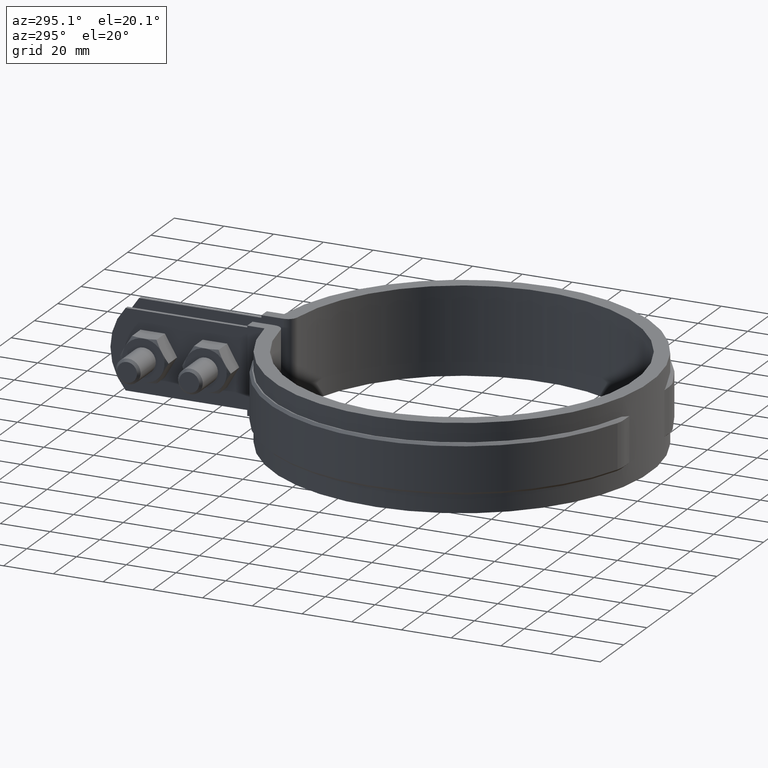
[diagram: clean part render]
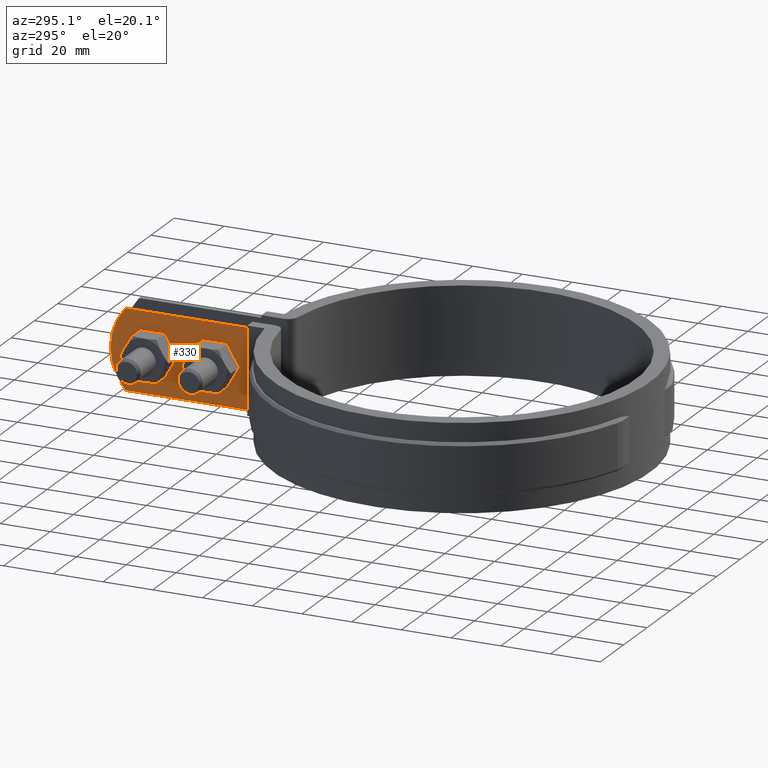
[diagram: same view with one face highlighted and labeled with its STEP entity id]
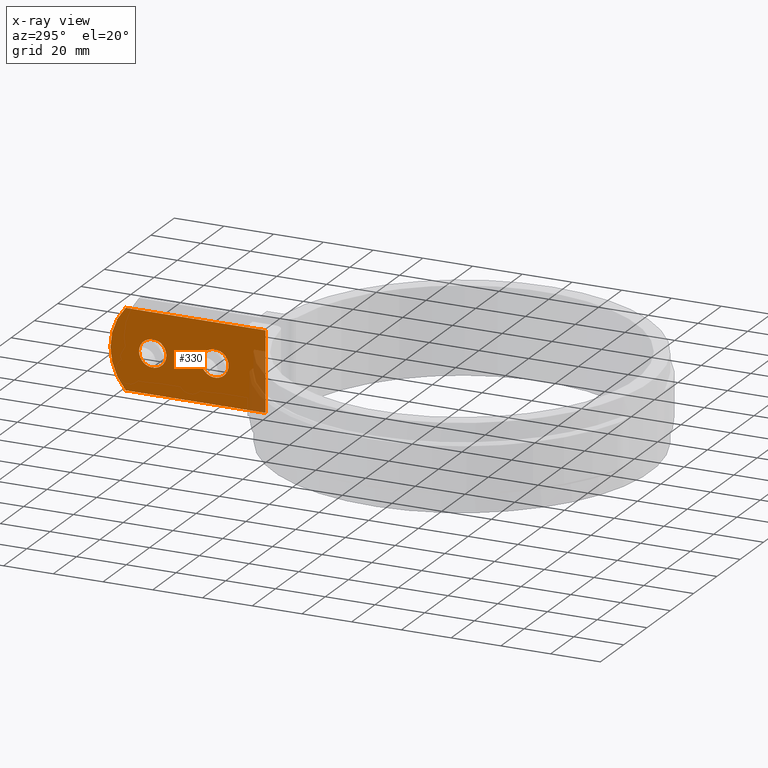
[diagram: x-ray of the same camera — body ghosted, the highlighted face saturated]
A machine part, auxiliary view. The second image highlights one B-rep face of the part: STEP entity #330.
The next image is the same camera in x-ray: the body ghosted, the highlighted face saturated — about 8% of this face is hidden behind the body in this view.
In plain terms, the highlighted planar face has unit normal (1, -0, 0).
Its self-contained STEP definition (entity closure, byte-faithful):
#330 = ADVANCED_FACE( '', ( #502, #503, #504 ), #505, .F. );
#502 = FACE_BOUND( '', #1215, .T. );
#503 = FACE_BOUND( '', #1216, .T. );
#504 = FACE_OUTER_BOUND( '', #1217, .T. );
#505 = PLANE( '', #1218 );
#1215 = EDGE_LOOP( '', ( #2390 ) );
#1216 = EDGE_LOOP( '', ( #2391 ) );
#1217 = EDGE_LOOP( '', ( #2392, #2393, #2394, #2395 ) );
#1218 = AXIS2_PLACEMENT_3D( '', #2396, #2397, #2398 );
#2390 = ORIENTED_EDGE( '', *, *, #4660, .F. );
#2391 = ORIENTED_EDGE( '', *, *, #4617, .F. );
#2392 = ORIENTED_EDGE( '', *, *, #4661, .T. );
#2393 = ORIENTED_EDGE( '', *, *, #4662, .T. );
#2394 = ORIENTED_EDGE( '', *, *, #4663, .F. );
#2395 = ORIENTED_EDGE( '', *, *, #4664, .F. );
#2396 = CARTESIAN_POINT( '', ( -6.49999999999999, 138.297141712793, 4.33680868994202E-016 ) );
#2397 = DIRECTION( '', ( 1.00000000000000, -6.02334540269725E-017, 0.000000000000000 ) );
#2398 = DIRECTION( '', ( -6.02334540269725E-017, -1.00000000000000, 0.000000000000000 ) );
#4617 = EDGE_CURVE( '', #5012, #5012, #5013, .F. );
#4660 = EDGE_CURVE( '', #5084, #5084, #5085, .F. );
#4661 = EDGE_CURVE( '', #5086, #5087, #5088, .T. );
#4662 = EDGE_CURVE( '', #5087, #5089, #5090, .T. );
#4663 = EDGE_CURVE( '', #5091, #5089, #5092, .T. );
#4664 = EDGE_CURVE( '', #5086, #5091, #5093, .T. );
#5012 = VERTEX_POINT( '', #5794 );
#5013 = CIRCLE( '', #5795, 5.50000000000000 );
#5084 = VERTEX_POINT( '', #6629 );
#5085 = CIRCLE( '', #6630, 5.50000000000000 );
#5086 = VERTEX_POINT( '', #6631 );
#5087 = VERTEX_POINT( '', #6632 );
#5088 = LINE( '', #6633, #6634 );
#5089 = VERTEX_POINT( '', #6635 );
#5090 = LINE( '', #6636, #6637 );
#5091 = VERTEX_POINT( '', #6638 );
#5092 = LINE( '', #6639, #6640 );
#5093 = CIRCLE( '', #6641, 24.0000000000000 );
#5794 = CARTESIAN_POINT( '', ( -6.49999999999999, 101.797141712793, -16.0000000000000 ) );
#5795 = AXIS2_PLACEMENT_3D( '', #8407, #8408, #8409 );
#6629 = CARTESIAN_POINT( '', ( -6.49999999999999, 126.797141712793, -16.0000000000000 ) );
#6630 = AXIS2_PLACEMENT_3D( '', #8448, #8449, #8450 );
#6631 = CARTESIAN_POINT( '', ( -6.49999999999998, 132.185685532792, -32.0000000000000 ) );
#6632 = CARTESIAN_POINT( '', ( -6.50000000000000, 75.8680433384175, -32.0000000000000 ) );
#6633 = CARTESIAN_POINT( '', ( -6.49999999999999, 138.297141712793, -32.0000000000000 ) );
#6634 = VECTOR( '', #8451, 1000.00000000000 );
#6635 = CARTESIAN_POINT( '', ( -6.50000000000000, 75.8680433384175, 4.33680868994202E-016 ) );
#6636 = CARTESIAN_POINT( '', ( -6.50000000000000, 75.8680433384175, 4.33680868994202E-016 ) );
#6637 = VECTOR( '', #8452, 1000.00000000000 );
#6638 = CARTESIAN_POINT( '', ( -6.49999999999999, 132.185685532792, 4.33680868994202E-016 ) );
#6639 = CARTESIAN_POINT( '', ( -6.49999999999999, 138.297141712793, 4.33680868994202E-016 ) );
#6640 = VECTOR( '', #8453, 1000.00000000000 );
#6641 = AXIS2_PLACEMENT_3D( '', #8454, #8455, #8456 );
#8407 = CARTESIAN_POINT( '', ( -6.49999999999999, 96.2971417127934, -16.0000000000000 ) );
#8408 = DIRECTION( '', ( 1.00000000000000, -6.02334540269725E-017, 0.000000000000000 ) );
#8409 = DIRECTION( '', ( 6.02334540269725E-017, 1.00000000000000, 0.000000000000000 ) );
#8448 = CARTESIAN_POINT( '', ( -6.49999999999999, 121.297141712793, -16.0000000000000 ) );
#8449 = DIRECTION( '', ( 1.00000000000000, -6.02334540269725E-017, 0.000000000000000 ) );
#8450 = DIRECTION( '', ( 6.02334540269725E-017, 1.00000000000000, 0.000000000000000 ) );
#8451 = DIRECTION( '', ( -6.02334540269725E-017, -1.00000000000000, 0.000000000000000 ) );
#8452 = DIRECTION( '', ( 0.000000000000000, 0.000000000000000, 1.00000000000000 ) );
#8453 = DIRECTION( '', ( -6.02334540269725E-017, -1.00000000000000, 0.000000000000000 ) );
#8454 = CARTESIAN_POINT( '', ( -6.49999999999998, 114.297141712793, -16.0000000000000 ) );
#8455 = DIRECTION( '', ( 1.00000000000000, -6.02334540269725E-017, 0.000000000000000 ) );
#8456 = DIRECTION( '', ( 6.02334540269725E-017, 1.00000000000000, 0.000000000000000 ) );